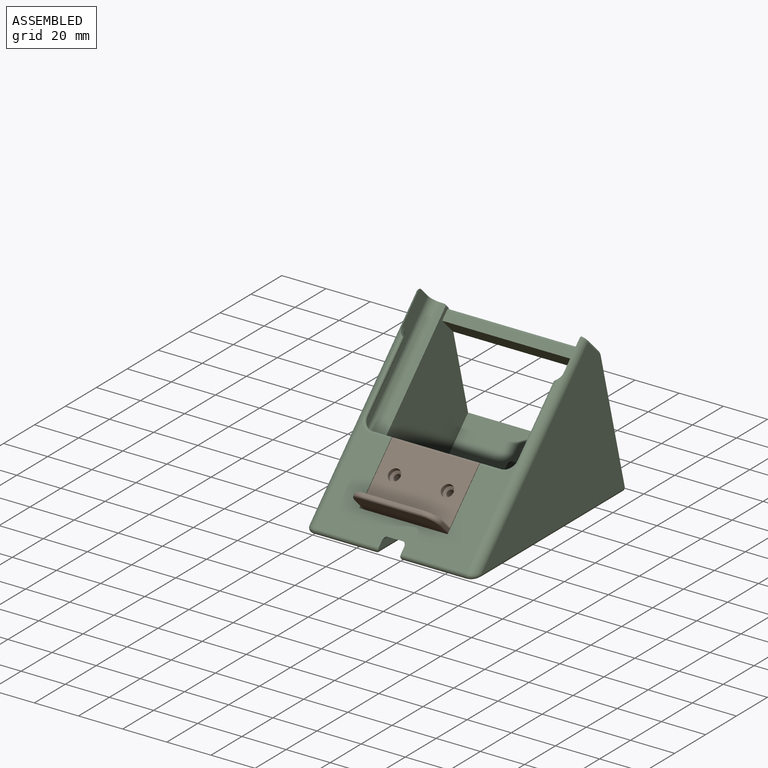
[diagram: assembled view]
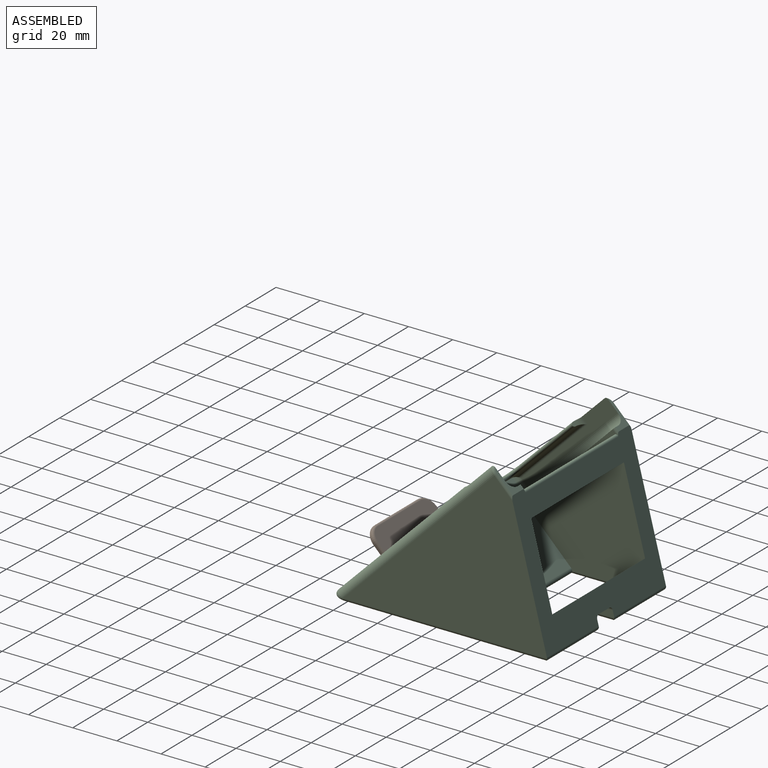
[diagram: assembled view, second angle]
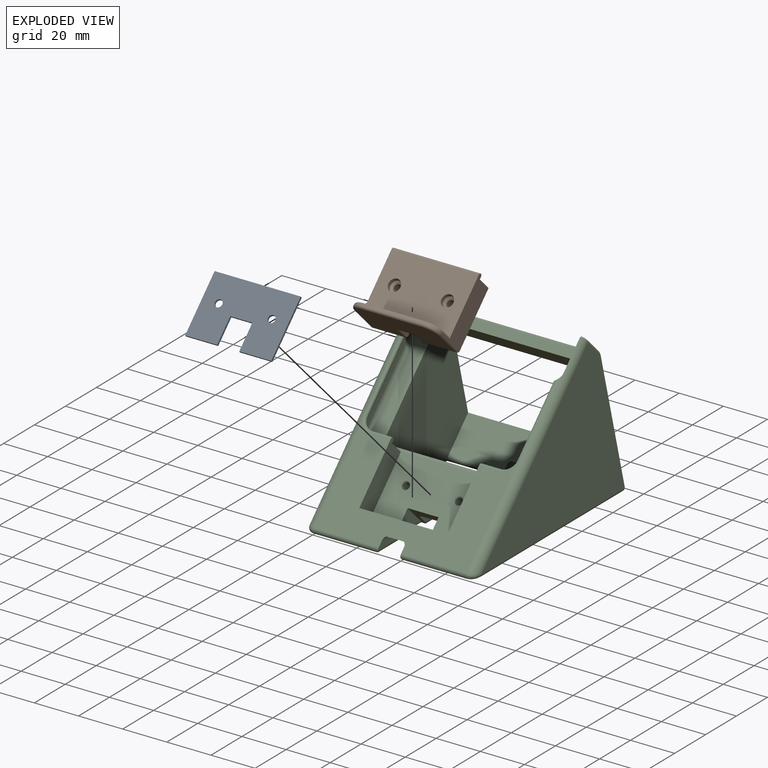
[diagram: exploded view]
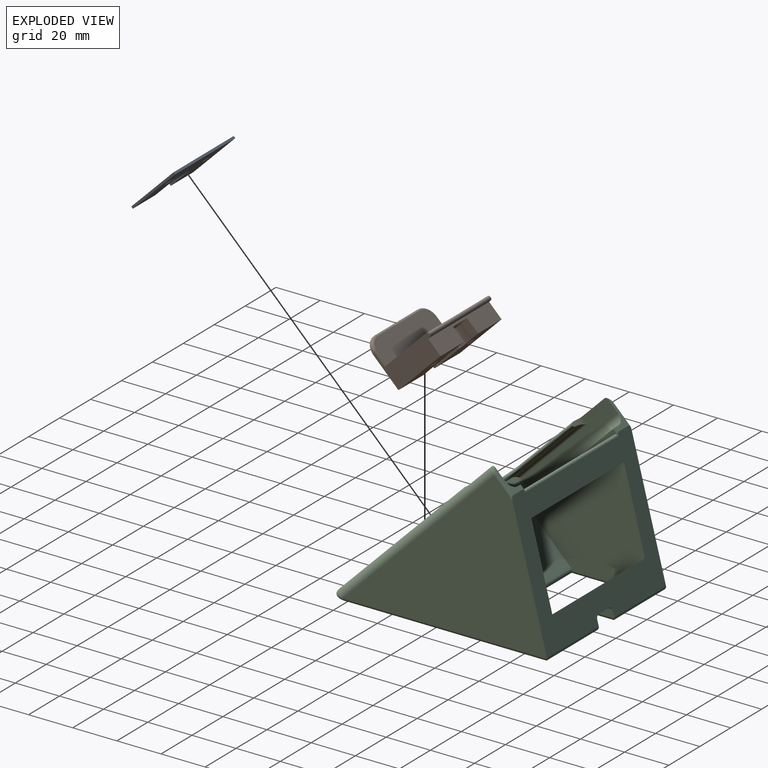
[diagram: exploded view, second angle]
ASSEMBLY  parts=3 mates=2
PART A: 12 faces, bbox 39x27x1 mm
  f0: plane 39x1mm, normal (0,1,0), area 39mm2, adj f1,f7,f8,f9
  f1: plane 27x1mm, normal (-1,0,0), area 27mm2, adj f0,f2,f8,f9
  f2: plane 14.5x1mm, normal (0,-1,0), area 14.5mm2, adj f1,f3,f8,f9
  f3: plane 12x1mm, normal (1,0,0), area 12mm2, adj f2,f4,f8,f9
  f4: plane 10x1mm, normal (0,-1,0), area 10mm2, adj f3,f5,f8,f9
  f5: plane 12x1mm, normal (-1,0,0), area 12mm2, adj f4,f6,f8,f9
  f6: plane 14.5x1mm, normal (0,-1,0), area 14.5mm2, adj f5,f7,f8,f9
  f7: plane 27x1mm, normal (1,0,0), area 27mm2, adj f0,f6,f8,f9
  f8: plane 39x27mm, normal (0,0,1), area 915.9mm2, adj f0,f1,f2,f3,f4,f5,f6,f7
  f9: plane 39x27mm, normal (0,0,-1), area 915.9mm2, adj f0,f1,f2,f3,f4,f5,f6,f7
  f10: cylinder r=1.65mm len=3.3mm, axis (0,0,-1), area 10.4mm2, adj f8,f9
  f11: cylinder r=1.65mm len=3.3mm, axis (0,0,-1), area 10.4mm2, adj f8,f9
PART B: 45 faces, bbox 40.5x29.5x22.5 mm
  f0: cylinder r=1.6mm len=7.31mm, axis (0,0,-1), area 73.5mm2, adj f7,f41
  f1: cylinder r=1.6mm len=7.31mm, axis (0,0,-1), area 73.5mm2, adj f3,f39
  f2: plane 39.5x8mm, normal (0,1,0), area 253mm2, adj f3,f4,f6,f7,f9,f18,f19,f43
  f3: plane 26.5x16.25mm, normal (0,0,1), area 389.4mm2, adj f1,f2,f4,f9,f10,f11,f12,f13
  f4: plane 28.5x16mm, normal (-1,0,0), area 271.6mm2, adj f2,f3,f8,f22,f28,f36,f43,f44
  f5: plane 37.5x20mm, normal (0,-1,0), area 676.3mm2, adj f29,f30,f31,f32,f33,f34,f35,f36
  f6: plane 28.5x16mm, normal (1,0,0), area 271.6mm2, adj f2,f7,f8,f23,f24,f33,f43,f44
  f7: plane 26.5x16.25mm, normal (0,0,1), area 389.4mm2, adj f0,f2,f6,f14,f15,f16,f17,f18
  f8: plane 39.5x27mm, normal (0,0,-1), area 979.9mm2, adj f4,f6,f20,f24,f28,f40,f42,f44
  f9: plane 7x4.03mm, normal (1,0,0), area 28.2mm2, adj f2,f3,f10,f19
  f10: cylinder r=6mm len=7.94mm, axis (0,0,1), area 60.7mm2, adj f3,f9,f11,f19
  f11: plane 13.03x7mm, normal (1,0,0), area 91.2mm2, adj f3,f10,f12,f19
  f12: plane 7x1mm, normal (0,1,0), area 7mm2, adj f3,f11,f13,f19
  f13: plane 7x1.5mm, normal (1,0,0), area 10.5mm2, adj f3,f12,f19,f32
  f14: plane 7x1.5mm, normal (-1,0,0), area 10.5mm2, adj f7,f15,f19,f29
  f15: plane 7x1mm, normal (0,1,0), area 7mm2, adj f7,f14,f16,f19
  f16: plane 13.03x7mm, normal (-1,0,0), area 91.2mm2, adj f7,f15,f17,f19
  f17: cylinder r=6mm len=7.94mm, axis (0,0,1), area 60.7mm2, adj f7,f16,f18,f19
  f18: plane 7x4.03mm, normal (-1,0,0), area 28.2mm2, adj f2,f7,f17,f19
  f19: plane 26.5x12mm, normal (0,0,1), area 251.8mm2, adj f2,f9,f10,f11,f12,f13,f14,f15
  f20: plane 37.5x11mm, normal (0,1,0), area 401.8mm2, adj f8,f24,f25,f26,f27,f28
  f21: plane 27.5x0.5mm, normal (0,0,-1), area 13.7mm2, adj f22,f23,f26,f37
  f22: cylinder r=6mm len=6mm, axis (0,-1,0), area 4.7mm2, adj f4,f21,f27,f38
  f23: cylinder r=6mm len=6mm, axis (0,1,0), area 4.7mm2, adj f6,f21,f25,f35
  f24: cylinder r=1mm len=6mm, axis (0,0,1), area 9.4mm2, adj f6,f8,f20,f25
  f25: torus R=5mm, axis (0,1,0), area 13.9mm2, adj f20,f23,f24,f26
  f26: cylinder r=1mm len=27.5mm, axis (1,0,0), area 43.2mm2, adj f20,f21,f25,f27
  f27: torus R=5mm, axis (0,1,0), area 13.9mm2, adj f20,f22,f26,f28
  f28: cylinder r=1mm len=6mm, axis (0,0,-1), area 9.4mm2, adj f4,f8,f20,f27
  f29: cylinder r=1mm len=8mm, axis (0,0,1), area 11mm2, adj f5,f14,f30,f31
  f30: cylinder r=1mm len=9mm, axis (-1,0,0), area 12.1mm2, adj f5,f19,f29,f32
  f31: cylinder r=1mm len=16.25mm, axis (-1,0,0), area 24.4mm2, adj f5,f7,f29,f33
  f32: cylinder r=1mm len=8mm, axis (0,0,1), area 11mm2, adj f5,f13,f30,f34
  f33: cylinder r=1mm len=16mm, axis (0,0,1), area 24.6mm2, adj f5,f6,f31,f35
  f34: cylinder r=1mm len=16.25mm, axis (-1,0,0), area 24.4mm2, adj f3,f5,f32,f36
  f35: torus R=5mm, axis (0,1,0), area 13.9mm2, adj f5,f23,f33,f37
  f36: cylinder r=1mm len=16mm, axis (0,0,-1), area 24.6mm2, adj f4,f5,f34,f38
  f37: cylinder r=1mm len=27.5mm, axis (1,0,0), area 43.2mm2, adj f5,f21,f35,f38
  f38: torus R=5mm, axis (0,1,0), area 13.9mm2, adj f5,f22,f36,f37
  f39: cone r=0mm half-angle=59deg, axis (0,0,-1), area 18.3mm2, adj f1,f40
  f40: cylinder r=2.75mm len=5.5mm, axis (0,0,-1), area 34.6mm2, adj f8,f39
  f41: cone r=0mm half-angle=59deg, axis (0,0,-1), area 18.3mm2, adj f0,f42
  f42: cylinder r=2.75mm len=5.5mm, axis (0,0,-1), area 34.6mm2, adj f8,f41
  f43: plane 39.5x1mm, normal (0,0,1), area 39.5mm2, adj f2,f4,f6,f44
  f44: cylinder r=1mm len=39.5mm, axis (-1,0,0), area 124.1mm2, adj f4,f6,f8,f43
PART C: 215 faces, bbox 77.7x99.6x73.3 mm
  f0: plane 94.44x30.5mm, normal (0,0,-1), area 2127.1mm2, adj f33,f34,f35,f36,f37,f38,f87,f88
  f1: plane 41.01x41.01mm, normal (0,-0.71,0.71), area 144.8mm2, adj f15,f24,f59,f65,f74
  f2: plane 14.5x5.66mm, normal (0,0.71,0.71), area 115.1mm2, adj f12,f29,f65,f67,f68
  f3: plane 94.44x30.5mm, normal (0,0,-1), area 2244.3mm2, adj f40,f41,f42,f43,f44,f45,f100,f101
  f4: plane 69x31.81mm, normal (0,-0.71,0.71), area 1658.9mm2, adj f8,f28,f29,f52,f53,f54,f60,f61
  f5: plane 77x61.76mm, normal (0,0.97,0.25), area 2485.5mm2, adj f7,f14,f15,f17,f18,f23,f24,f27
  f6: plane 60x20.9mm, normal (0,0.71,0.71), area 1725.7mm2, adj f23,f24,f49,f50,f51,f86,f87,f102
  f7: plane 60x12.83mm, normal (0,-0.71,0.71), area 1041mm2, adj f5,f23,f24,f55,f56,f57,f90,f106
  f8: plane 40x8.75mm, normal (0,0.71,0.71), area 386mm2, adj f4,f28,f29,f30,f47,f48,f52,f53
  f9: plane 14.97x9.55mm, normal (0,-0.71,-0.71), area 110mm2, adj f30,f47,f48,f49,f50,f51,f89,f91
  f10: cylinder r=1.6mm len=8.34mm, axis (0,-0.71,0.71), area 86.5mm2, adj f31,f46
  f11: cylinder r=1.6mm len=8.34mm, axis (0,-0.71,0.71), area 86.5mm2, adj f32,f39
  f12: plane 14.5x3.25mm, normal (0,0.71,-0.71), area 20mm2, adj f2,f29,f66,f77,f79
  f13: plane 60x3.01mm, normal (0,-0.71,0.71), area 255.2mm2, adj f23,f24,f27,f85
  f14: plane 8.65x8.65mm, normal (0,0.71,0.71), area 26mm2, adj f5,f19,f20,f58,f71,f72,f73
  f15: plane 8.65x8.65mm, normal (0,0.71,0.71), area 26mm2, adj f1,f5,f21,f59,f69,f70,f74
  f16: plane 14.5x3.25mm, normal (0,0.71,-0.71), area 20mm2, adj f22,f28,f62,f83,f84
  f17: plane 92.4x68.5mm, normal (-1,0,0), area 3351mm2, adj f5,f61,f70,f94,f96
  f18: plane 92.4x68.5mm, normal (1,0,0), area 3351mm2, adj f5,f60,f72,f110,f112
  f19: plane 45.85x43.84mm, normal (-1,0,0), area 286mm2, adj f14,f26,f58,f60,f66,f68,f71
  f20: plane 41.01x41.01mm, normal (0,-0.71,0.71), area 144.8mm2, adj f14,f23,f58,f65,f73
  f21: plane 45.85x43.84mm, normal (1,0,0), area 286mm2, adj f15,f25,f59,f61,f62,f63,f69
  f22: plane 14.5x5.66mm, normal (0,0.71,0.71), area 115.1mm2, adj f16,f28,f63,f64,f65
  f23: plane 62.85x55.54mm, normal (-1,0,0), area 1949.2mm2, adj f5,f6,f7,f13,f20,f27,f65,f73
  f24: plane 62.85x55.54mm, normal (1,0,0), area 1949.2mm2, adj f1,f5,f6,f7,f13,f27,f65,f74
  f25: cylinder r=5mm len=5.86mm, axis (0,0.71,-0.71), area 12.4mm2, adj f21,f61,f62,f80
  f26: cylinder r=5mm len=5.86mm, axis (0,0.71,-0.71), area 12.4mm2, adj f19,f60,f66,f75
  f27: plane 60x7.23mm, normal (0,-0.71,-0.71), area 613.3mm2, adj f5,f13,f23,f24
  f28: plane 27.87x26.87mm, normal (1,0,0), area 283.6mm2, adj f4,f8,f16,f22,f30,f84
  f29: plane 27.87x26.87mm, normal (-1,0,0), area 283.6mm2, adj f2,f4,f8,f12,f30,f79
  f30: plane 40x19.8mm, normal (0,-0.71,0.71), area 982.9mm2, adj f8,f9,f28,f29,f31,f32,f47,f48
  f31: cone r=1.6mm half-angle=45deg, axis (0,-0.71,0.71), area 6.4mm2, adj f10,f30
  f32: cone r=1.6mm half-angle=45deg, axis (0,-0.71,0.71), area 6.4mm2, adj f11,f30
  f33: plane 7.36x7.36mm, normal (0,0.71,0.71), area 31.2mm2, adj f0,f34,f38,f39
  f34: plane 11.03x9.19mm, normal (0.87,0.35,0.35), area 35.1mm2, adj f0,f33,f35,f39
  f35: plane 12.87x11.03mm, normal (0.87,-0.35,-0.35), area 42.9mm2, adj f0,f34,f36,f39
  f36: plane 11.03x11.03mm, normal (0,-0.71,-0.71), area 46.8mm2, adj f0,f35,f37,f39
  f37: plane 12.87x11.03mm, normal (-0.87,-0.35,-0.35), area 42.9mm2, adj f0,f36,f38,f39
  f38: plane 11.03x9.19mm, normal (-0.87,0.35,0.35), area 35.1mm2, adj f0,f33,f37,f39
  f39: plane 6x3.67mm, normal (0,0.71,-0.71), area 15.3mm2, adj f11,f33,f34,f35,f36,f37,f38
  f40: plane 11.03x9.19mm, normal (0.87,0.35,0.35), area 35.1mm2, adj f3,f41,f45,f46
  f41: plane 12.87x11.03mm, normal (0.87,-0.35,-0.35), area 42.9mm2, adj f3,f40,f42,f46
  f42: plane 11.03x11.03mm, normal (0,-0.71,-0.71), area 46.8mm2, adj f3,f41,f43,f46
  f43: plane 12.87x11.03mm, normal (-0.87,-0.35,-0.35), area 42.9mm2, adj f3,f42,f44,f46
  f44: plane 11.03x9.19mm, normal (-0.87,0.35,0.35), area 35.1mm2, adj f3,f43,f45,f46
  f45: plane 7.36x7.36mm, normal (0,0.71,0.71), area 31.2mm2, adj f3,f40,f44,f46
  f46: plane 6x3.67mm, normal (0,0.71,-0.71), area 15.3mm2, adj f10,f40,f41,f42,f43,f44,f45
  f47: plane 14.06x8.4mm, normal (1,0,0), area 63.3mm2, adj f8,f9,f30,f93,f95
  f48: plane 14.06x8.4mm, normal (-1,0,0), area 63.3mm2, adj f8,f9,f30,f103,f105
  f49: plane 31.11x7mm, normal (0,0,-1), area 217.8mm2, adj f6,f9,f113,f114
  f50: plane 33.49x3mm, normal (1,0,0), area 93.1mm2, adj f6,f9,f87,f89,f113
  f51: plane 33.49x3mm, normal (-1,0,0), area 93.1mm2, adj f6,f9,f100,f102,f114
  f52: plane 18.38x3mm, normal (-1,0,0), area 49.4mm2, adj f4,f8,f105,f107,f109,f118
  f53: plane 18.38x3mm, normal (1,0,0), area 49.4mm2, adj f4,f8,f95,f97,f99,f117
  f54: plane 10.63x7mm, normal (0,0,-1), area 74.4mm2, adj f4,f8,f117,f118
  f55: plane 16.83x3mm, normal (-1,0,0), area 46.6mm2, adj f5,f7,f106,f108,f110,f116
  f56: plane 16.83x3mm, normal (1,0,0), area 46.6mm2, adj f5,f7,f90,f92,f94,f115
  f57: plane 11.83x7mm, normal (0,0,-1), area 82.8mm2, adj f5,f7,f115,f116
  f58: cylinder r=4mm len=43.84mm, axis (0,-0.71,-0.71), area 364.4mm2, adj f14,f19,f20,f67
  f59: cylinder r=4mm len=43.84mm, axis (0,0.71,0.71), area 364.4mm2, adj f1,f15,f21,f64
  f60: cylinder r=4mm len=73.1mm, axis (0,0.71,0.71), area 558.6mm2, adj f4,f18,f19,f26,f71,f75,f78,f111
  f61: cylinder r=4mm len=73.1mm, axis (0,-0.71,-0.71), area 558.6mm2, adj f4,f17,f21,f25,f69,f80,f82,f98
  f62: cylinder r=2mm len=32.76mm, axis (0,-0.71,-0.71), area 118.2mm2, adj f16,f21,f25,f63,f80,f81
  f63: cylinder r=2mm len=5.66mm, axis (0,-0.71,0.71), area 16.6mm2, adj f21,f22,f62,f64
  f64: torus R=2mm, axis (0,0.71,0.71), area 16.2mm2, adj f22,f59,f63,f65
  f65: cylinder r=2mm len=65mm, axis (-1,0,0), area 163.4mm2, adj f1,f2,f20,f22,f23,f24,f30,f64
  f66: cylinder r=2mm len=32.76mm, axis (0,0.71,0.71), area 118.2mm2, adj f12,f19,f26,f68,f75,f76
  f67: torus R=2mm, axis (0,0.71,0.71), area 16.2mm2, adj f2,f58,f65,f68
  f68: cylinder r=2mm len=5.66mm, axis (0,0.71,-0.71), area 16.6mm2, adj f2,f19,f66,f67
  f69: torus R=3mm, axis (0,0.71,0.71), area 5.6mm2, adj f15,f21,f61,f70
  f70: cylinder r=1mm len=8.98mm, axis (0,-0.71,0.71), area 16.7mm2, adj f5,f15,f17,f69
  f71: torus R=3mm, axis (0,0.71,0.71), area 5.6mm2, adj f14,f19,f60,f72
  f72: cylinder r=1mm len=8.98mm, axis (0,0.71,-0.71), area 16.7mm2, adj f5,f14,f18,f71
  f73: cylinder r=1mm len=3.19mm, axis (0,-0.71,0.71), area 3.9mm2, adj f5,f14,f20,f23,f85
  f74: cylinder r=1mm len=3.19mm, axis (0,0.71,-0.71), area 3.9mm2, adj f1,f5,f15,f24,f85
  f75: cylinder r=1mm len=25.4mm, axis (0,0.71,0.71), area 104.5mm2, adj f26,f60,f66,f76,f78
  f76: bspline ~3.82x3.57mm, area 3.2mm2, adj f66,f75,f77,f78
  f77: torus R=6mm, axis (0,0.71,-0.71), area 19.5mm2, adj f4,f12,f76,f78,f79
  f78: bspline ~2.99x2.73mm, area 3.7mm2, adj f60,f75,f76,f77
  f79: cylinder r=1mm len=9mm, axis (-1,0,0), area 28.3mm2, adj f4,f12,f29,f77
  f80: cylinder r=1mm len=25.4mm, axis (0,-0.71,-0.71), area 104.5mm2, adj f25,f61,f62,f81,f82
  f81: bspline ~3.82x3.57mm, area 3.2mm2, adj f62,f80,f82,f83
  f82: bspline ~2.43x2.08mm, area 3.7mm2, adj f61,f80,f81,f83
  f83: torus R=6mm, axis (0,0.71,-0.71), area 19.5mm2, adj f4,f16,f81,f82,f84
  f84: cylinder r=1mm len=9mm, axis (-1,0,0), area 28.3mm2, adj f4,f16,f28,f83
  f85: cylinder r=1mm len=60.01mm, axis (1,0,0), area 126.1mm2, adj f5,f13,f23,f24,f73,f74
  f86: cylinder r=1mm len=60mm, axis (-1,0,0), area 73.9mm2, adj f6,f23,f24,f65
  f87: cylinder r=1.5mm len=26.5mm, axis (1,0,0), area 88.4mm2, adj f0,f6,f24,f50,f88,f89
  f88: cylinder r=1.5mm len=22.8mm, axis (0,-1,0), area 49.2mm2, adj f0,f24,f87,f90
  f89: cylinder r=1.5mm len=30.49mm, axis (0,-1,0), area 68.1mm2, adj f0,f9,f50,f87,f91
  f90: cylinder r=1.5mm len=26.5mm, axis (-1,0,0), area 88.4mm2, adj f0,f7,f24,f56,f88,f92
  f91: cylinder r=1.5mm len=3.06mm, axis (-1,0,0), area 2.4mm2, adj f0,f9,f89,f93
  f92: cylinder r=1.5mm len=16.83mm, axis (0,-1,0), area 37.1mm2, adj f0,f56,f90,f94
  f93: cylinder r=1.5mm len=15.56mm, axis (0,-1,0), area 31.9mm2, adj f0,f9,f47,f91,f95
  f94: cylinder r=1.5mm len=33.5mm, axis (-1,0,0), area 89.2mm2, adj f0,f5,f17,f56,f92,f96
  f95: cylinder r=1.5mm len=3.5mm, axis (1,0,0), area 7.1mm2, adj f0,f8,f47,f53,f93,f97
  f96: cylinder r=1.5mm len=92.4mm, axis (0,1,0), area 216.4mm2, adj f0,f17,f94,f98
  f97: cylinder r=1.5mm len=18.38mm, axis (0,-1,0), area 40.7mm2, adj f0,f53,f95,f99
  f98: bspline ~7.36x4.23mm, area 19.8mm2, adj f0,f61,f96,f99
  f99: cylinder r=1.5mm len=29.5mm, axis (1,0,0), area 103mm2, adj f0,f4,f53,f97,f98
  f100: cylinder r=1.5mm len=30.49mm, axis (0,1,0), area 68.1mm2, adj f3,f9,f51,f101,f102
  f101: cylinder r=1.5mm len=3.06mm, axis (-1,0,0), area 2.4mm2, adj f3,f9,f100,f103
  f102: cylinder r=1.5mm len=26.5mm, axis (1,0,0), area 88.4mm2, adj f3,f6,f23,f51,f100,f104
  f103: cylinder r=1.5mm len=15.56mm, axis (0,1,0), area 31.9mm2, adj f3,f9,f48,f101,f105
  f104: cylinder r=1.5mm len=22.8mm, axis (0,1,0), area 49.2mm2, adj f3,f23,f102,f106
  f105: cylinder r=1.5mm len=3.5mm, axis (1,0,0), area 7.1mm2, adj f3,f8,f48,f52,f103,f107
  f106: cylinder r=1.5mm len=26.5mm, axis (-1,0,0), area 88.4mm2, adj f3,f7,f23,f55,f104,f108
  f107: cylinder r=1.5mm len=18.38mm, axis (0,1,0), area 40.7mm2, adj f3,f52,f105,f109
  f108: cylinder r=1.5mm len=16.83mm, axis (0,1,0), area 37.1mm2, adj f3,f55,f106,f110
  f109: cylinder r=1.5mm len=29.5mm, axis (1,0,0), area 103mm2, adj f3,f4,f52,f107,f111
  f110: cylinder r=1.5mm len=33.5mm, axis (-1,0,0), area 89.2mm2, adj f3,f5,f18,f55,f108,f112
  f111: bspline ~7.36x4.56mm, area 19.8mm2, adj f3,f60,f109,f112
  f112: cylinder r=1.5mm len=92.4mm, axis (0,-1,0), area 216.4mm2, adj f3,f18,f110,f111
  f113: cylinder r=1.5mm len=32.61mm, axis (0,1,0), area 73.3mm2, adj f6,f9,f49,f50
  f114: cylinder r=1.5mm len=32.61mm, axis (0,-1,0), area 73.3mm2, adj f6,f9,f49,f51
  f115: cylinder r=1.5mm len=13.72mm, axis (0,1,0), area 29.5mm2, adj f5,f7,f56,f57
  f116: cylinder r=1.5mm len=13.72mm, axis (0,-1,0), area 29.5mm2, adj f5,f7,f55,f57
  f117: cylinder r=1.5mm len=13.63mm, axis (0,1,0), area 27.6mm2, adj f4,f8,f53,f54
  f118: cylinder r=1.5mm len=13.63mm, axis (0,-1,0), area 27.6mm2, adj f4,f8,f52,f54
  f119: plane 6.1x2.32mm, normal (0.93,-0.35,0), area 6.5mm2, adj f0,f120,f128,f129
  f120: plane 1.08x1mm, normal (0,-1,0), area 1.1mm2, adj f0,f119,f121,f129
  f121: plane 6.1x2.32mm, normal (-0.93,-0.35,0), area 6.5mm2, adj f0,f120,f122,f129
  f122: plane 1x0.99mm, normal (0,1,0), area 1mm2, adj f0,f121,f123,f129
  f123: extruded ~4.05x1.46mm, area 4.3mm2, adj f0,f122,f124,f129
  f124: extruded ~1.22x1mm, area 1.3mm2, adj f0,f123,f125,f129
  f125: plane 1x0.04mm, normal (0,1,0), area 0mm2, adj f0,f124,f126,f129
  f126: extruded ~1.65x1mm, area 1.7mm2, adj f0,f125,f127,f129
  f127: plane 3.62x1.32mm, normal (-0.94,0.34,0), area 3.9mm2, adj f0,f126,f128,f129
  f128: plane 1x0.99mm, normal (0,1,0), area 1mm2, adj f0,f119,f127,f129
  f129: plane 6.1x5.71mm, normal (0,0,-1), area 11.1mm2, adj f119,f120,f121,f122,f123,f124,f125,f126
  f130: plane 1x0.92mm, normal (0,-1,0), area 0.9mm2, adj f0,f131,f133,f134
  f131: plane 6.1x1mm, normal (-1,0,0), area 6.1mm2, adj f0,f130,f132,f134
  f132: plane 1x0.92mm, normal (0,1,0), area 0.9mm2, adj f0,f131,f133,f134
  f133: plane 6.1x1mm, normal (1,0,0), area 6.1mm2, adj f0,f130,f132,f134
  f134: plane 6.1x0.92mm, normal (0,0,-1), area 5.6mm2, adj f130,f131,f132,f133
  f135: extruded ~1x0.47mm, area 0.5mm2, adj f0,f136,f142,f143
  f136: extruded ~1x0.47mm, area 0.5mm2, adj f0,f135,f137,f143
  f137: extruded ~1x0.39mm, area 0.4mm2, adj f0,f136,f138,f143
  f138: extruded ~1x0.38mm, area 0.4mm2, adj f0,f137,f139,f143
  f139: extruded ~1x0.47mm, area 0.5mm2, adj f0,f138,f140,f143
  f140: extruded ~1x0.46mm, area 0.5mm2, adj f0,f139,f141,f143
  f141: extruded ~1x0.38mm, area 0.4mm2, adj f0,f140,f142,f143
  f142: extruded ~1x0.39mm, area 0.4mm2, adj f0,f135,f141,f143
  f143: plane 1.23x1.09mm, normal (0,0,-1), area 1.1mm2, adj f135,f136,f137,f138,f139,f140,f141,f142
  f144: extruded ~2.4x1mm, area 2.6mm2, adj f145,f157,f158,f212
  f145: extruded ~2.46x1mm, area 2.7mm2, adj f144,f146,f158,f212
  f146: extruded ~2.55x1mm, area 2.7mm2, adj f145,f147,f158,f212
  f147: plane 1.15x1mm, normal (0,1,0), area 1.2mm2, adj f146,f148,f158,f212
  f148: plane 6.5x1mm, normal (-1,0,0), area 6.5mm2, adj f147,f149,f158,f212
  f149: plane 1.38x1mm, normal (0,-1,0), area 1.4mm2, adj f148,f157,f158,f212
  f150: extruded ~3.08x1.09mm, area 3.4mm2, adj f0,f151,f156,f158
  f151: extruded ~2.94x1.05mm, area 3.2mm2, adj f0,f150,f152,f158
  f152: extruded ~2.95x1.05mm, area 3.2mm2, adj f0,f151,f153,f158
  f153: plane 2.49x1mm, normal (0,1,0), area 2.5mm2, adj f0,f152,f154,f158
  f154: plane 8.14x1mm, normal (1,0,0), area 8.1mm2, adj f0,f153,f155,f158
  f155: plane 2.26x1mm, normal (0,-1,0), area 2.3mm2, adj f0,f154,f156,f158
  f156: extruded ~3.15x1.07mm, area 3.4mm2, adj f0,f150,f155,f158
  f157: extruded ~2.38x1mm, area 2.6mm2, adj f144,f149,f158,f212
  f158: plane 8.14x6.5mm, normal (0,0,-1), area 21mm2, adj f144,f145,f146,f147,f148,f149,f150,f151
  f159: extruded ~1.36x1mm, area 1.5mm2, adj f160,f185,f186,f213
  f160: extruded ~1x0.85mm, area 0.9mm2, adj f159,f161,f186,f213
  f161: extruded ~1x0.76mm, area 0.8mm2, adj f160,f162,f186,f213
  f162: extruded ~1x0.94mm, area 1.1mm2, adj f161,f163,f186,f213
  f163: extruded ~1.59x1mm, area 1.6mm2, adj f162,f164,f186,f213
  f164: plane 1x0.92mm, normal (-0.04,-1,0), area 0.9mm2, adj f163,f165,f186,f213
  f165: plane 1x0.55mm, normal (1,0,0), area 0.6mm2, adj f164,f185,f186,f213
  f166: plane 1x0.87mm, normal (0.98,-0.21,0), area 0.9mm2, adj f0,f167,f184,f186
  f167: plane 1x0.69mm, normal (0,-1,0), area 0.7mm2, adj f0,f166,f168,f186
  f168: plane 4.17x1mm, normal (-1,0,0), area 4.2mm2, adj f0,f167,f169,f186
  f169: extruded ~1.55x1mm, area 1.7mm2, adj f0,f168,f170,f186
  f170: extruded ~1.62x1mm, area 1.7mm2, adj f0,f169,f171,f186
  f171: extruded ~1.08x1mm, area 1.1mm2, adj f0,f170,f172,f186
  f172: extruded ~1x0.99mm, area 1.1mm2, adj f0,f171,f173,f186
  f173: plane 1x0.71mm, normal (0.93,-0.37,0), area 0.8mm2, adj f0,f172,f174,f186
  f174: extruded ~1.72x1mm, area 1.8mm2, adj f0,f173,f175,f186
  f175: extruded ~1x0.99mm, area 1.1mm2, adj f0,f174,f176,f186
  f176: extruded ~1.06x1mm, area 1.1mm2, adj f0,f175,f177,f186
  f177: plane 1x0.38mm, normal (1,0,0), area 0.4mm2, adj f0,f176,f178,f186
  f178: plane 1.04x1mm, normal (0.03,1,0), area 1mm2, adj f0,f177,f179,f186
  f179: extruded ~2.96x1.94mm, area 4mm2, adj f0,f178,f180,f186
  f180: extruded ~1.33x1mm, area 1.5mm2, adj f0,f179,f181,f186
  f181: extruded ~1.42x1mm, area 1.5mm2, adj f0,f180,f182,f186
  f182: extruded ~1.13x1mm, area 1.2mm2, adj f0,f181,f183,f186
  f183: extruded ~1x0.91mm, area 1.2mm2, adj f0,f182,f184,f186
  f184: plane 1x0.04mm, normal (0,-1,0), area 0mm2, adj f0,f166,f183,f186
  f185: extruded ~1.32x1mm, area 1.5mm2, adj f159,f165,f186,f213
  f186: plane 6.31x4.89mm, normal (0,0,-1), area 14.6mm2, adj f159,f160,f161,f162,f163,f164,f165,f166
  f187: extruded ~1.37x1mm, area 1.5mm2, adj f188,f210,f211,f214
  f188: extruded ~1.26x1mm, area 1.5mm2, adj f187,f189,f211,f214
  f189: extruded ~1.77x1mm, area 1.8mm2, adj f188,f190,f211,f214
  f190: extruded ~1.78x1mm, area 1.9mm2, adj f189,f191,f211,f214
  f191: extruded ~1.25x1mm, area 1.5mm2, adj f190,f192,f211,f214
  f192: extruded ~1.38x1mm, area 1.5mm2, adj f191,f193,f211,f214
  f193: extruded ~1.85x1mm, area 1.9mm2, adj f192,f194,f211,f214
  f194: plane 1x0.19mm, normal (1,0,0), area 0.2mm2, adj f193,f210,f211,f214
  f195: plane 1x0.05mm, normal (0,-1,0), area 0mm2, adj f0,f196,f209,f211
  f196: plane 1x0.82mm, normal (0.99,-0.15,0), area 0.8mm2, adj f0,f195,f197,f211
  f197: plane 1x0.75mm, normal (0,-1,0), area 0.8mm2, adj f0,f196,f198,f211
  f198: plane 8.67x1mm, normal (-1,0,0), area 8.7mm2, adj f0,f197,f199,f211
  f199: plane 1x0.92mm, normal (0,1,0), area 0.9mm2, adj f0,f198,f200,f211
  f200: plane 2.48x1mm, normal (1,0,0), area 2.5mm2, adj f0,f199,f201,f211
  f201: plane 1x0.43mm, normal (1,-0.05,0), area 0.4mm2, adj f0,f200,f202,f211
  f202: plane 1x0.44mm, normal (1,-0.09,0), area 0.4mm2, adj f0,f201,f203,f211
  f203: plane 1x0.07mm, normal (0,1,0), area 0.1mm2, adj f0,f202,f204,f211
  f204: extruded ~1.9x1mm, area 2.2mm2, adj f0,f203,f205,f211
  f205: extruded ~1.86x1mm, area 2.1mm2, adj f0,f204,f206,f211
  f206: extruded ~2.35x1mm, area 2.5mm2, adj f0,f205,f207,f211
  f207: extruded ~2.33x1mm, area 2.5mm2, adj f0,f206,f208,f211
  f208: extruded ~1.86x1mm, area 2.1mm2, adj f0,f207,f209,f211
  f209: extruded ~1.92x1mm, area 2.2mm2, adj f0,f195,f208,f211
  f210: extruded ~1.66x1mm, area 1.7mm2, adj f187,f194,f211,f214
  f211: plane 8.78x5.37mm, normal (0,0,-1), area 18.2mm2, adj f187,f188,f189,f190,f191,f192,f193,f194
  f212: plane 6.5x4.55mm, normal (0,0,-1), area 26mm2, adj f144,f145,f146,f147,f148,f149,f157
  f213: plane 3x2.35mm, normal (0,0,-1), area 5.7mm2, adj f159,f160,f161,f162,f163,f164,f165,f185
  f214: plane 4.78x3.49mm, normal (0,0,-1), area 14mm2, adj f187,f188,f189,f190,f191,f192,f193,f194
PLACE A rot(axis=(1,0,0),45deg) t=(-22.78,5.55,37.12)mm
PLACE B rot(axis=(0,0.92,0.38),180deg) t=(-22.78,-24.32,21.39)mm
PLACE C t=(-22.78,-25.91,0)mm
MATE slider C.f31 <-> B.f1  axis (0,-0.71,0.71) through (-10.78,-16.01,15.56)mm
MATE slider C.f31 <-> A.f11  axis (0,-0.71,0.71) through (-10.78,-16.01,15.56)mm
